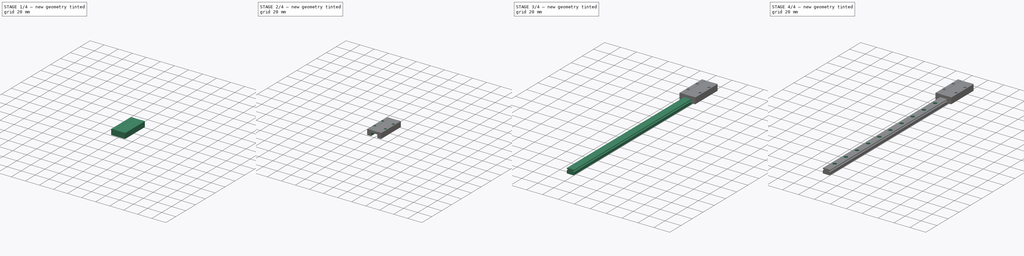
[diagram: build sequence overview — one tinted view per stage of 4, left to right]
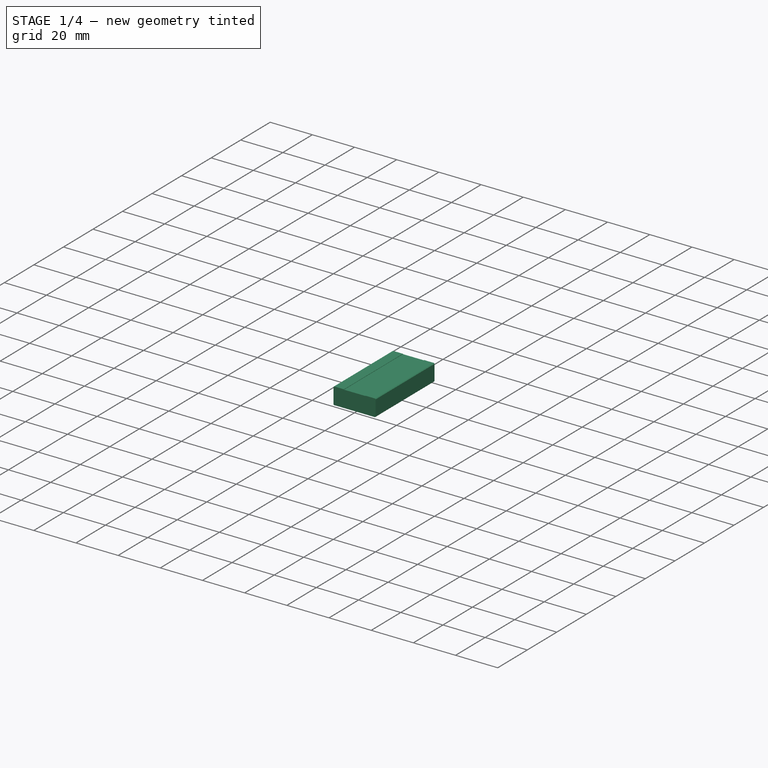
[diagram: stage 1 of 4 — iso view after this stage's code; geometry added in this stage tinted green]
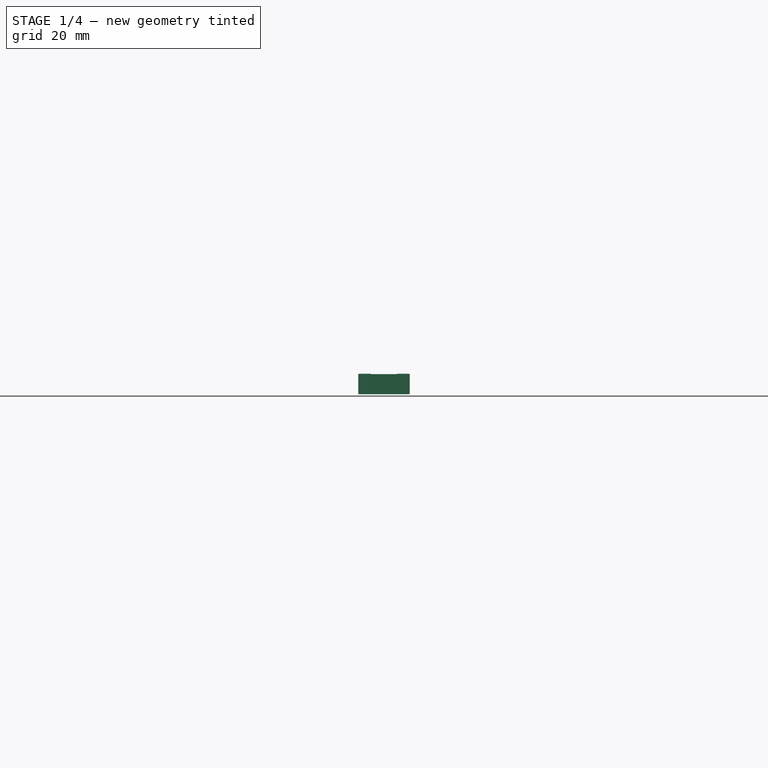
[diagram: stage 1 of 4 — front view after this stage's code; geometry added in this stage tinted green]
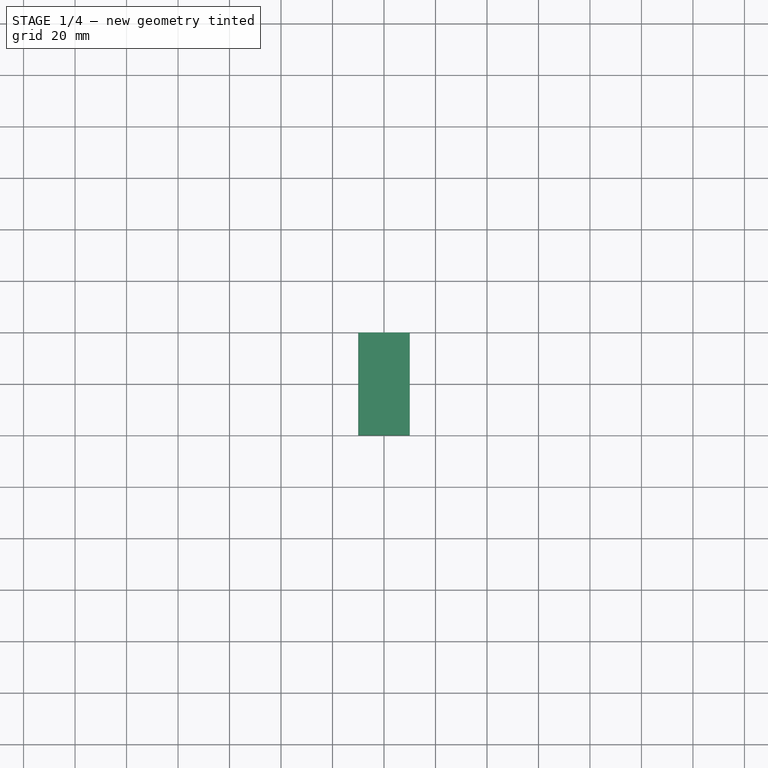
[diagram: stage 1 of 4 — top view after this stage's code; geometry added in this stage tinted green]
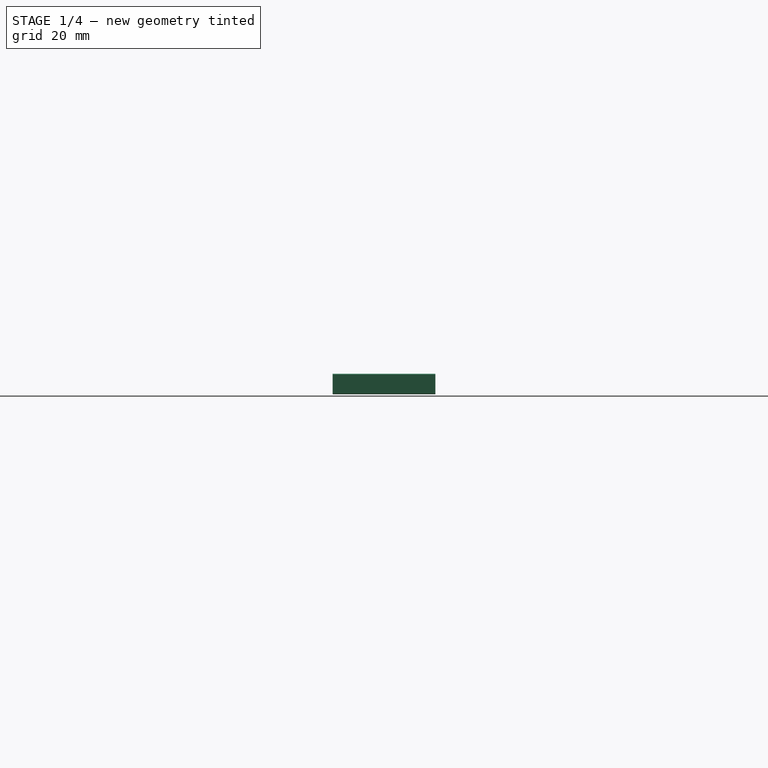
[diagram: stage 1 of 4 — right view after this stage's code; geometry added in this stage tinted green]
FCSTD DOCUMENT  (FreeCAD 0.18R16117 (Git))
Label: MGN9H
License: All rights reserved
LicenseURL: http://en.wikipedia.org/wiki/All_rights_reserved
objects: Sketcher::SketchObject×5, PartDesign::Chamfer×3, PartDesign::Pad×2, PartDesign::Hole×2, PartDesign::Body×2, PartDesign::LinearPattern×1, PartDesign::Pocket×1
note: 21 computed .brp shape members not serialized (recipe doc carries the construction recipe); baked Part::Feature solids carry a one-line shape summary decoded from their .brp

FEATURE [PartDesign::Body] Body  label="MGNR9"
  Group = -> [Sketch,Pad,Sketch001,Chamfer,Hole,LinearPattern]
  Origin = -> Origin
  Tip = -> LinearPattern
FEATURE [Sketcher::SketchObject] Sketch002
  MapMode = 5
  Placement = pos=(0,0,0) rot=(1,0,0;1.5708rad)
  Support = -> [XZ_Plane001]
  sketch-geometry (8):
    g0: LineSegment StartX=-10 StartY=2 StartZ=0 EndX=-10 EndY=10 EndZ=0
    g1: LineSegment StartX=10 StartY=2 StartZ=0 EndX=10 EndY=10 EndZ=0
    g2: LineSegment StartX=-5 StartY=9.85 StartZ=0 EndX=5 EndY=9.85 EndZ=0
    g3: LineSegment StartX=-10 StartY=10 StartZ=0 EndX=-5 EndY=10 EndZ=0
    g4: LineSegment StartX=10 StartY=10 StartZ=0 EndX=5 EndY=10 EndZ=0
    g5: LineSegment StartX=-5 StartY=10 StartZ=0 EndX=-5 EndY=9.85 EndZ=0
    g6: LineSegment StartX=5 StartY=10 StartZ=0 EndX=5 EndY=9.85 EndZ=0
    g7: LineSegment StartX=-10 StartY=2 StartZ=0 EndX=10 EndY=2 EndZ=0
  constraints (20):
    c: Vertical(g0)
    c: DistanceY(g-1,g0) = 2
    c: DistanceY(g-1,g0) = 10
    c: Symmetric(g0,g1,g-2)
    c: DistanceX(g0,g1) = 20
    c: Symmetric(g0,g1,g-2)
    c: Symmetric(g2,g2,g-2)
    c: DistanceX(g2,g2) = 10
    c: Coincident(g3,g0)
    c: Coincident(g4,g1)
    c: Symmetric(g3,g4,g-2)
    c: Coincident(g5,g3)
    c: Coincident(g5,g2)
    c: Coincident(g6,g4)
    c: Coincident(g6,g2)
    c: Vertical(g5)
    c: Horizontal(g3)
    c: DistanceY(g5,g5) = 0.15
    c: Coincident(g7,g0)
    c: Coincident(g7,g1)
FEATURE [PartDesign::Pad] Pad001
  Length = 39.9
  Length2 = 100
  Placement = pos=(0,0,0) rot=(1,0,0;1.5708rad)
  Profile = -> Sketch002
  Type = 0
FEATURE [PartDesign::Chamfer] Chamfer001
  Base = -> Pad001 [Edge17,Edge2,Edge20,Edge1]
  BaseFeature = -> Pad001
  Placement = pos=(0,0,0) rot=(1,0,0;1.5708rad)
  Size = 0.3
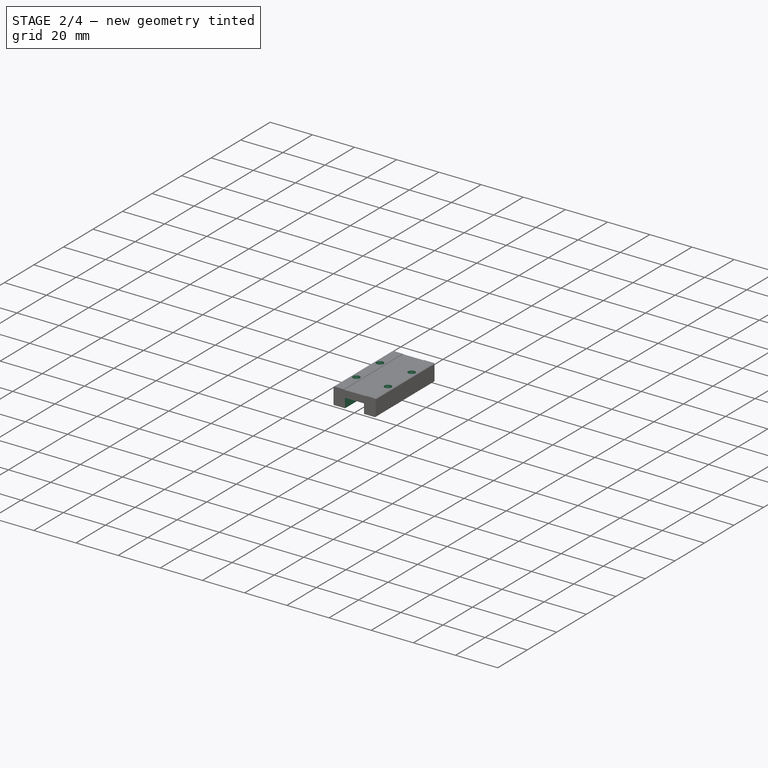
[diagram: stage 2 of 4 — iso view after this stage's code; geometry added in this stage tinted green]
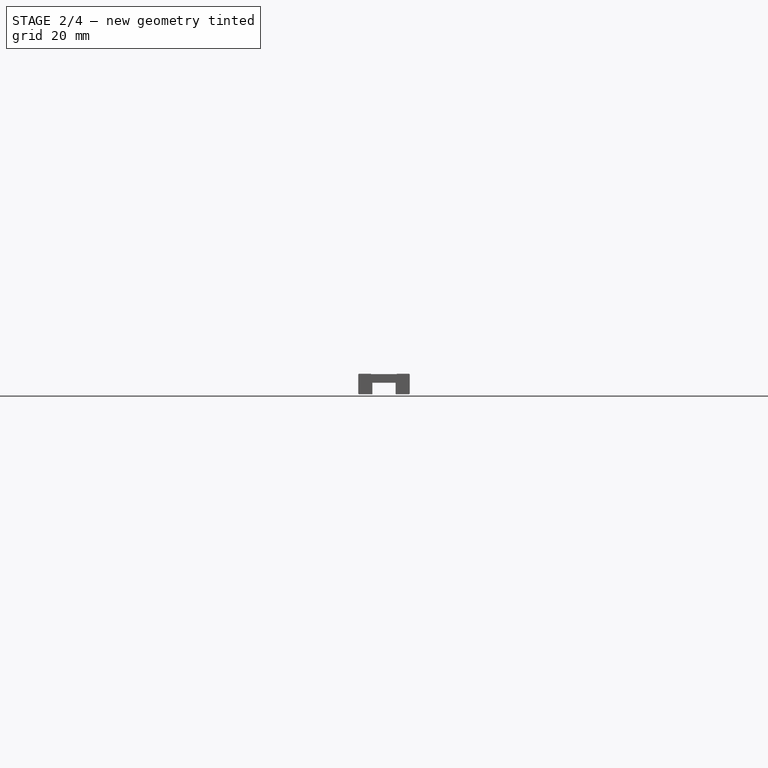
[diagram: stage 2 of 4 — front view after this stage's code; geometry added in this stage tinted green]
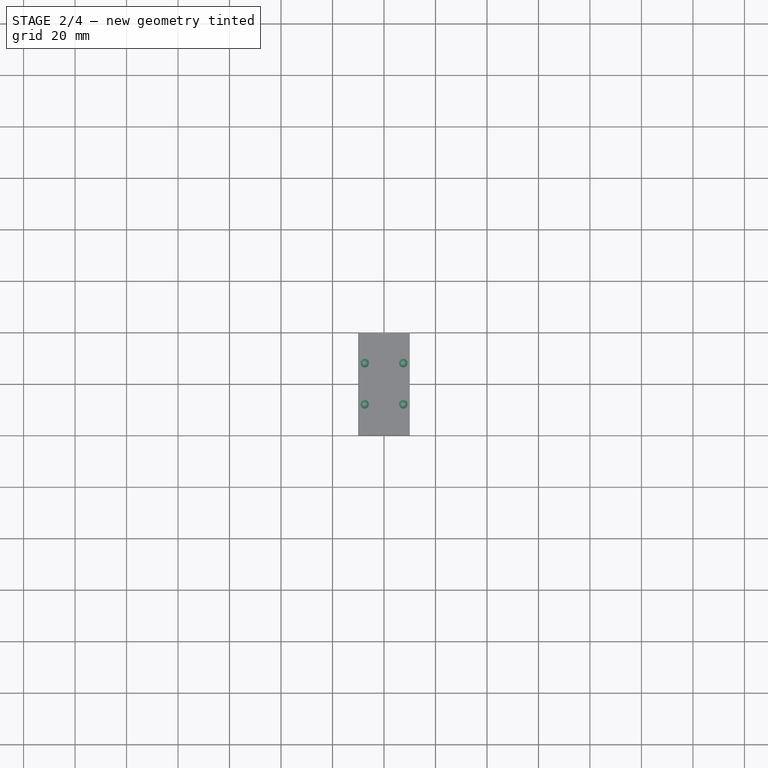
[diagram: stage 2 of 4 — top view after this stage's code; geometry added in this stage tinted green]
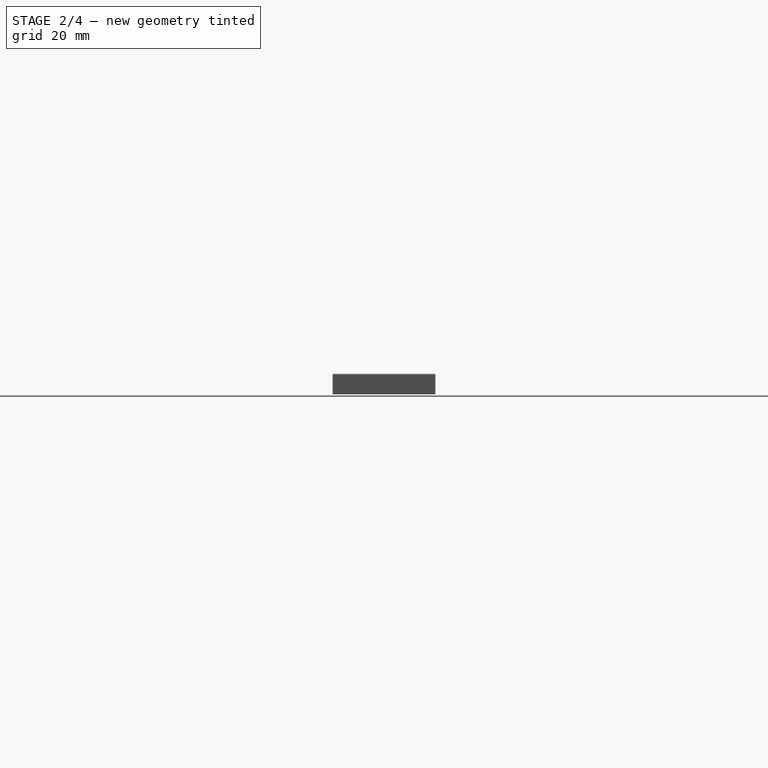
[diagram: stage 2 of 4 — right view after this stage's code; geometry added in this stage tinted green]
FEATURE [Sketcher::SketchObject] Sketch003
  AttachmentOffset = pos=(0,0,0.2) rot=(0,0,1;0rad)
  MapMode = 5
  Placement = pos=(0,4.4e-15,10.05) rot=(0,0,1;3.14159rad)
  Support = -> [Pad001]
  sketch-geometry (4):
    g0: Circle CenterX=-7.5 CenterY=11.95 CenterZ=0 NormalX=0 NormalY=0 NormalZ=1 AngleXU=0 Radius=1.5
    g1: Circle CenterX=7.5 CenterY=11.95 CenterZ=0 NormalX=0 NormalY=0 NormalZ=1 AngleXU=0 Radius=1.5
    g2: Circle CenterX=-7.5 CenterY=27.95 CenterZ=0 NormalX=0 NormalY=0 NormalZ=1 AngleXU=0 Radius=1.5
    g3: Circle CenterX=7.5 CenterY=27.95 CenterZ=0 NormalX=0 NormalY=0 NormalZ=1 AngleXU=0 Radius=1.5
  constraints (10):
    c: Diameter(g2) = 3
    c: Equal(g2,g3)
    c: Equal(g2,g1)
    c: Equal(g2,g0)
    c: Symmetric(g3,g2,g-2)
    c: Symmetric(g1,g0,g-2)
    c: Vertical(g0,g2)
    c: DistanceX(g2,g3) = 15
    c: DistanceY(g0,g2) = 16
    c: DistanceY(g-1,g0) = 11.95
FEATURE [PartDesign::Hole] Hole001
  BaseFeature = -> Chamfer001
  Depth = 8
  DepthType = 0
  Diameter = 3.3
  DrillPoint = 1
  DrillPointAngle = 118
  HoleCutCountersinkAngle = 90
  HoleCutDepth = 0
  HoleCutDiameter = 3
  HoleCutType = 0
  ModelActualThread = false
  Placement = pos=(0,0,0) rot=(1,0,0;1.5708rad)
  Profile = -> Sketch003
  Tapered = false
  TaperedAngle = 90
  ThreadAngle = 0
  ThreadClass = 0
  ThreadCutOffInner = 0
  ThreadCutOffOuter = 0
  ThreadDirection = 0
  ThreadFit = 0
  ThreadPitch = 0
  ThreadSize = 3
  ThreadType = 1
  Threaded = false
FEATURE [Sketcher::SketchObject] CopySketch
  Placement = pos=(0,0,0) rot=(1,0,0;1.5708rad)
  sketch-geometry (4):
    g0: LineSegment StartX=-4.5 StartY=6.5 StartZ=0 EndX=4.5 EndY=6.5 EndZ=0
    g1: LineSegment StartX=-4.5 StartY=0 StartZ=0 EndX=4.5 EndY=0 EndZ=0
    g2: LineSegment StartX=-4.5 StartY=6.5 StartZ=0 EndX=-4.5 EndY=0 EndZ=0
    g3: LineSegment StartX=4.5 StartY=6.5 StartZ=0 EndX=4.5 EndY=0 EndZ=0
  constraints (10):
    c: DistanceX(g1,g1) = 9
    c: Symmetric(g1,g1,g-2)
    c: PointOnObject(g1,g-1)
    c: DistanceY(g1,g0) = 6.5
    c: Symmetric(g0,g0,g-2)
    c: Coincident(g2,g0)
    c: Coincident(g2,g1)
    c: Vertical(g2)
    c: Coincident(g3,g0)
    c: Coincident(g3,g1)
FEATURE [PartDesign::Pocket] Pocket
  BaseFeature = -> Hole001
  Length = 5
  Length2 = 100
  Midplane = true
  Placement = pos=(0,0,0) rot=(1,0,0;1.5708rad)
  Profile = -> CopySketch
  Type = 1
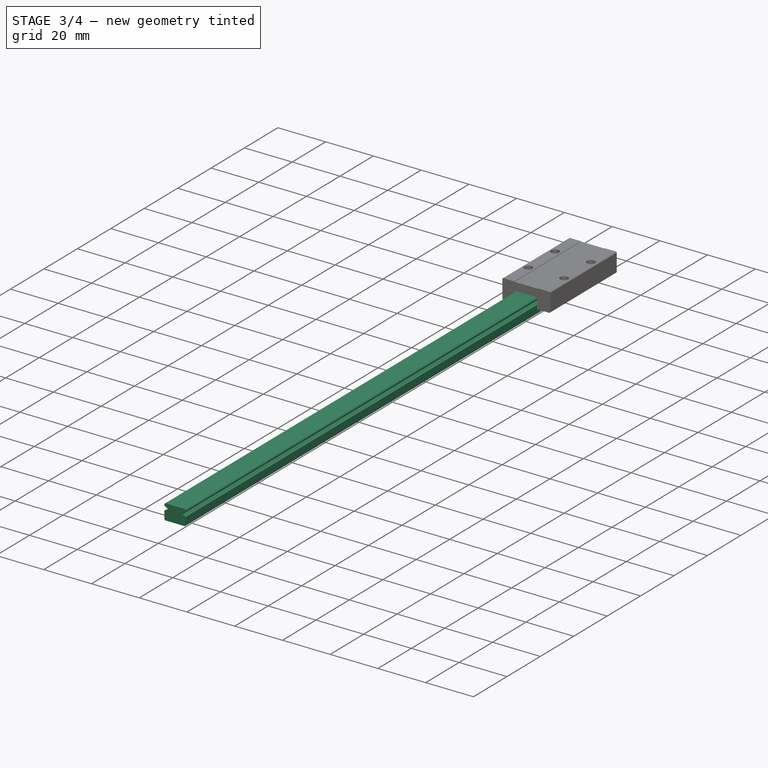
[diagram: stage 3 of 4 — iso view after this stage's code; geometry added in this stage tinted green]
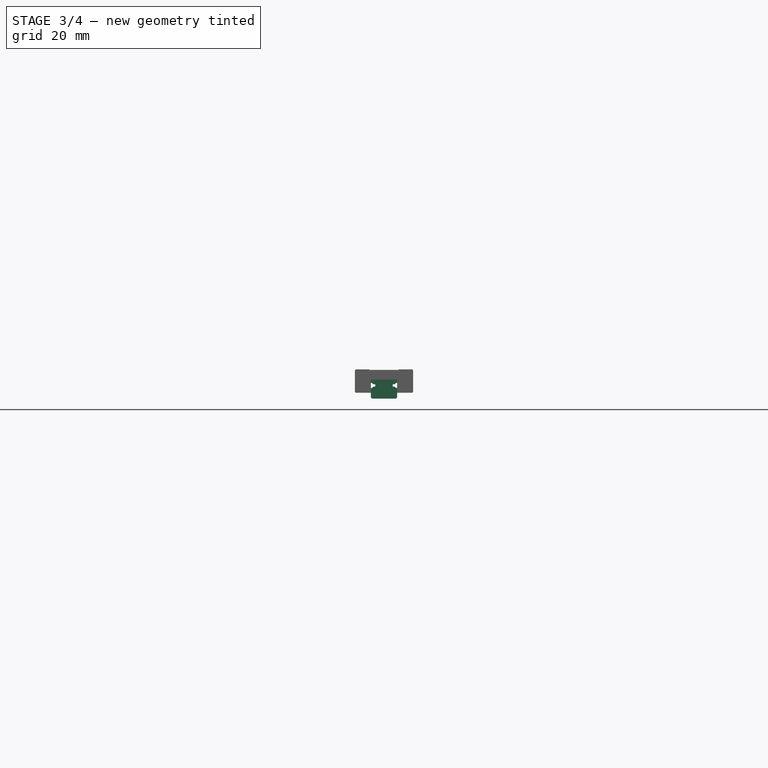
[diagram: stage 3 of 4 — front view after this stage's code; geometry added in this stage tinted green]
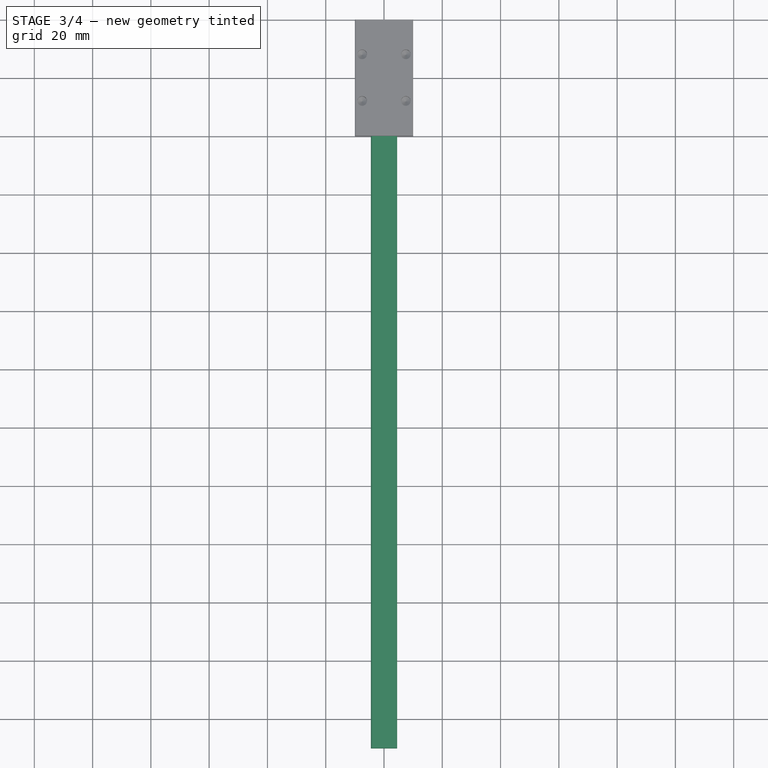
[diagram: stage 3 of 4 — top view after this stage's code; geometry added in this stage tinted green]
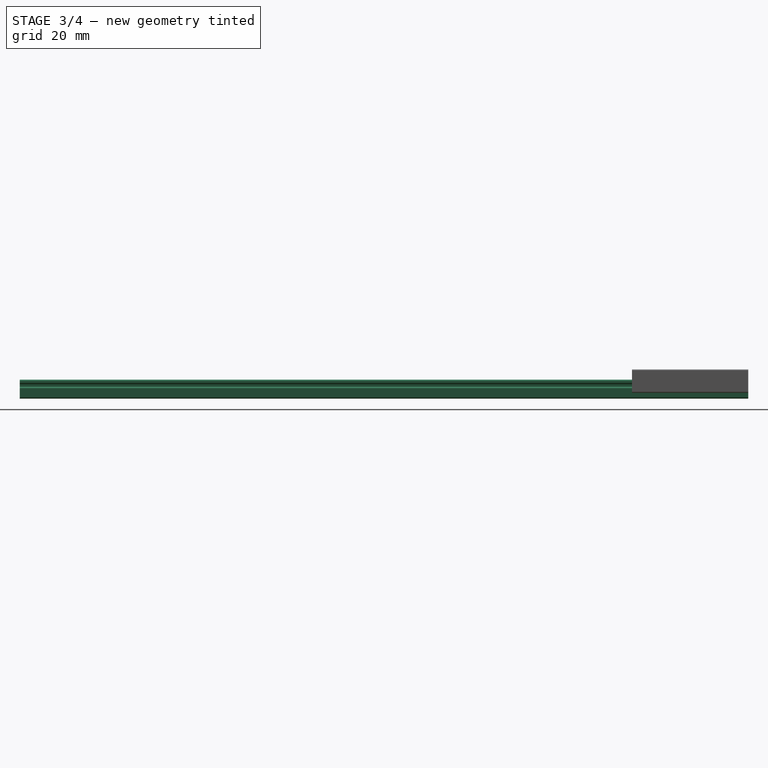
[diagram: stage 3 of 4 — right view after this stage's code; geometry added in this stage tinted green]
FEATURE [Sketcher::SketchObject] Sketch
  MapMode = 5
  Placement = pos=(0,0,0) rot=(1,0,0;1.5708rad)
  sketch-geometry (17):
    g0: LineSegment StartX=-4.5 StartY=6.5 StartZ=0 EndX=4.5 EndY=6.5 EndZ=0
    g1: LineSegment StartX=-4.5 StartY=0 StartZ=0 EndX=-4.5 EndY=3.6 EndZ=0
    g2: LineSegment StartX=-3.69377 StartY=4.1 StartZ=0 EndX=-3 EndY=4.1 EndZ=0
    g3: LineSegment StartX=-3 StartY=4.1 StartZ=0 EndX=-3 EndY=4.9 EndZ=0
    g4: LineSegment StartX=-3 StartY=4.9 StartZ=0 EndX=-3.69377 EndY=4.9 EndZ=0
    g5: LineSegment [constr] StartX=-4.5 StartY=4.5 StartZ=0 EndX=-3 EndY=4.5 EndZ=0
    g6: ArcOfCircle CenterX=-4.5 CenterY=4.5 CenterZ=0 NormalX=0 NormalY=0 NormalZ=1 AngleXU=0 Radius=0.9 StartAngle=4.71239 EndAngle=5.82263
    g7: ArcOfCircle CenterX=-4.5 CenterY=4.5 CenterZ=0 NormalX=0 NormalY=0 NormalZ=1 AngleXU=0 Radius=0.9 StartAngle=0.460554 EndAngle=1.5708
    g8: LineSegment StartX=-4.5 StartY=5.4 StartZ=0 EndX=-4.5 EndY=6.5 EndZ=0
    g9: LineSegment StartX=4.5 StartY=6.5 StartZ=0 EndX=4.5 EndY=5.4 EndZ=0
    g10: ArcOfCircle CenterX=4.5 CenterY=4.5 CenterZ=0 NormalX=0 NormalY=0 NormalZ=1 AngleXU=0 Radius=0.9 StartAngle=1.5708 EndAngle=2.68104
    g11: ArcOfCircle CenterX=4.5 CenterY=4.5 CenterZ=0 NormalX=0 NormalY=0 NormalZ=1 AngleXU=0 Radius=0.9 StartAngle=3.60215 EndAngle=4.71239
    g12: LineSegment StartX=3.69377 StartY=4.9 StartZ=0 EndX=3 EndY=4.9 EndZ=0
    g13: LineSegment StartX=3 StartY=4.9 StartZ=0 EndX=3 EndY=4.1 EndZ=0
    g14: LineSegment StartX=3 StartY=4.1 StartZ=0 EndX=3.69377 EndY=4.1 EndZ=0
    g15: LineSegment StartX=4.5 StartY=3.6 StartZ=0 EndX=4.5 EndY=0 EndZ=0
    g16: LineSegment StartX=-4.5 StartY=0 StartZ=0 EndX=4.5 EndY=0 EndZ=0
  constraints (44):
    c: DistanceX(g1,g15) = 9
    c: Symmetric(g1,g15,g-2)
    c: PointOnObject(g1,g-1)
    c: DistanceY(g1,g0) = 6.5
    c: Vertical(g1)
    c: Horizontal(g2)
    c: Coincident(g3,g2)
    c: Vertical(g3)
    c: Coincident(g4,g3)
    c: Horizontal(g4)
    c: PointOnObject(g5,g3)
    c: Horizontal(g5)
    c: Symmetric(g4,g2,g5)
    c: DistanceY(g2,g3) = 0.8
    c: Coincident(g6,g1)
    c: Coincident(g6,g2)
    c: Coincident(g7,g6)
    c: Coincident(g7,g4)
    c: Coincident(g8,g7)
    c: Vertical(g8)
    c: Coincident(g8,g0)
    c: Symmetric(g0,g0,g-2)
    c: Coincident(g5,g6)
    c: Symmetric(g7,g1,g6)
    c: Vertical(g7,g1)
    c: Radius(g7) = 0.9
    c: Coincident(g9,g0)
    c: Coincident(g10,g9)
    c: Symmetric(g9,g7,g-2)
    c: Symmetric(g10,g4,g-2)
    c: Coincident(g11,g10)
    c: Symmetric(g11,g2,g-2)
    c: Symmetric(g1,g11,g-2)
    c: Coincident(g12,g10)
    c: Coincident(g12,g13)
    c: Coincident(g13,g14)
    c: Coincident(g14,g11)
    c: Symmetric(g12,g3,g-2)
    c: Symmetric(g13,g2,g-2)
    c: Coincident(g15,g11)
    c: DistanceX(g7,g3) = 1.5
    c: DistanceY(g6,g0) = 2
    c: Coincident(g16,g1)
    c: Coincident(g16,g15)
FEATURE [PartDesign::Pad] Pad
  Length = 250
  Length2 = 100
  Placement = pos=(0,0,0) rot=(1,0,0;1.5708rad)
  Profile = -> Sketch
  Type = 0
FEATURE [Sketcher::SketchObject] Sketch001
  MapMode = 5
  Placement = pos=(0,1.4e-15,6.5) rot=(0,0,1;3.14159rad)
  Support = -> [Pad]
  sketch-geometry (1):
    g0: Circle CenterX=0 CenterY=15 CenterZ=0 NormalX=0 NormalY=0 NormalZ=1 AngleXU=0 Radius=6.47834
  constraints (2):
    c: PointOnObject(g0,g-2)
    c: DistanceY(g-1,g0) = 15
FEATURE [PartDesign::Chamfer] Chamfer
  Base = -> Pad [Edge23,Edge20,Edge44,Edge1]
  BaseFeature = -> Pad
  Placement = pos=(0,0,0) rot=(1,0,0;1.5708rad)
  Size = 0.4
FEATURE [PartDesign::Chamfer] Chamfer002
  Base = -> Pocket [Edge39,Edge38]
  BaseFeature = -> Pocket
  Placement = pos=(0,0,0) rot=(1,0,0;1.5708rad)
  Size = 0.4
FEATURE [PartDesign::Body] Body001  label="MGN9H"
  Group = -> [Sketch002,Pad001,Chamfer001,Sketch003,Hole001,CopySketch,Pocket,Chamfer002]
  Origin = -> Origin001
  Tip = -> Chamfer002
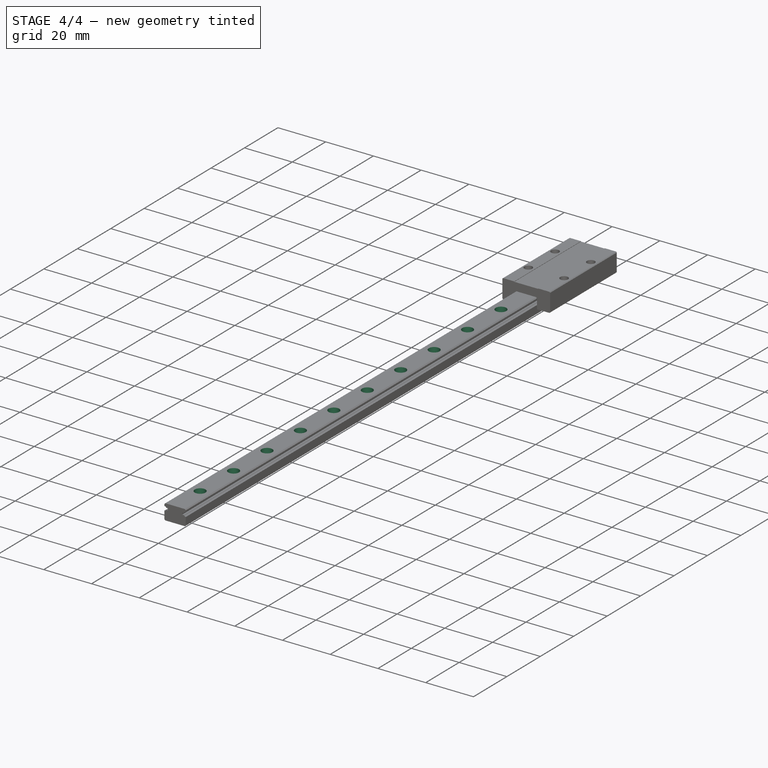
[diagram: stage 4 of 4 — iso view after this stage's code; geometry added in this stage tinted green]
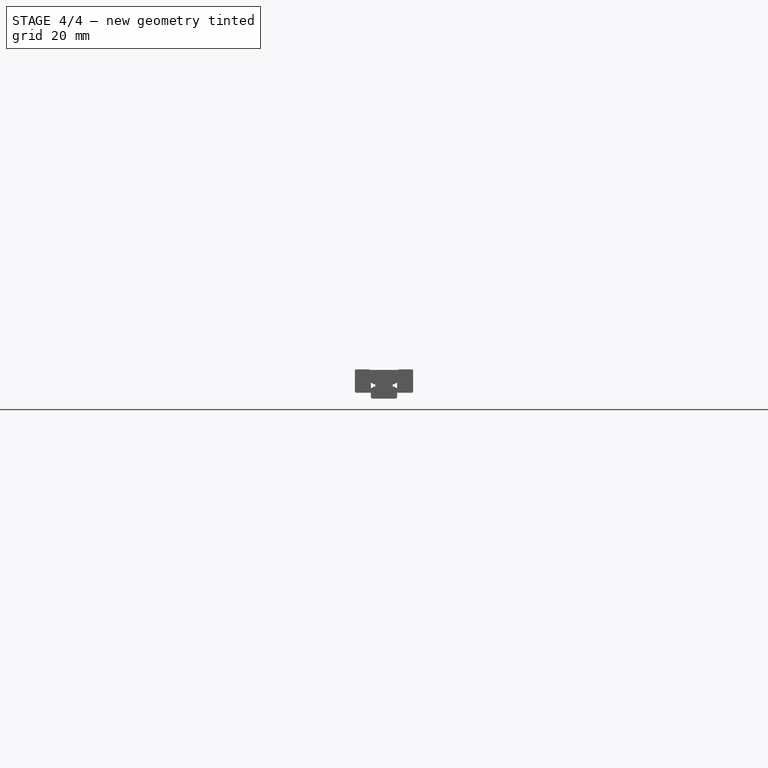
[diagram: stage 4 of 4 — front view after this stage's code; geometry added in this stage tinted green]
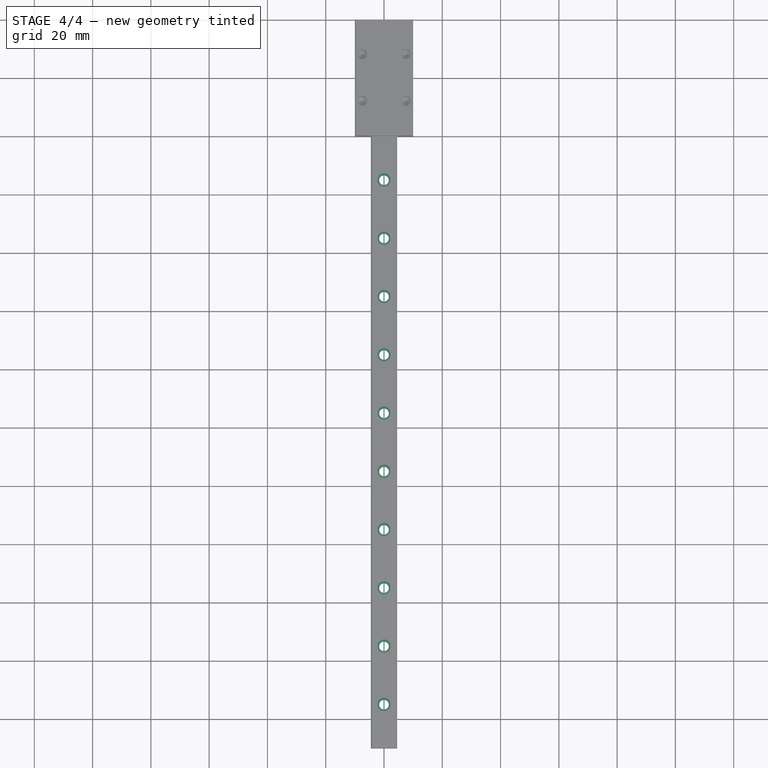
[diagram: stage 4 of 4 — top view after this stage's code; geometry added in this stage tinted green]
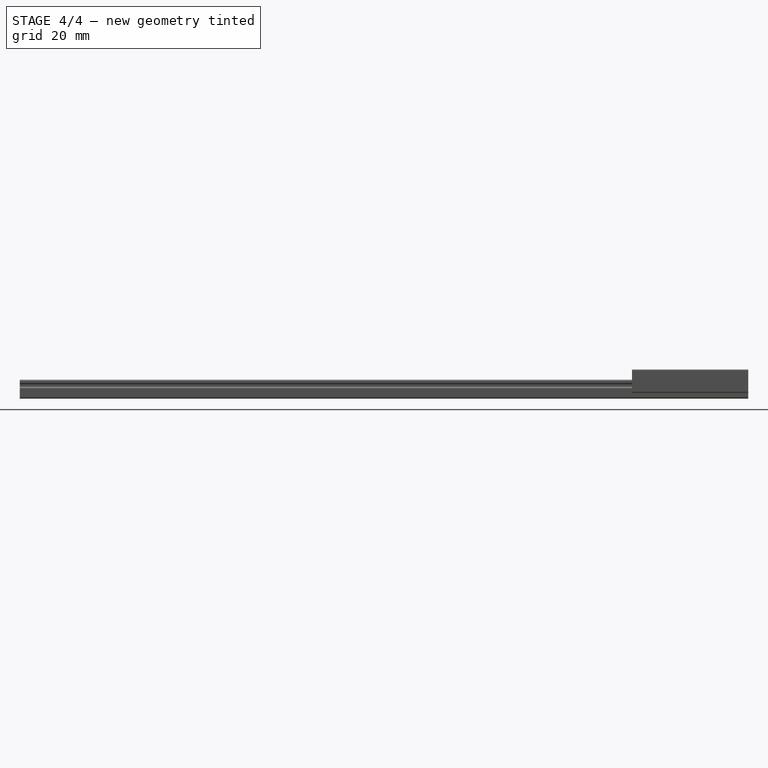
[diagram: stage 4 of 4 — right view after this stage's code; geometry added in this stage tinted green]
FEATURE [PartDesign::Hole] Hole
  BaseFeature = -> Chamfer
  Depth = 25
  DepthType = 0
  Diameter = 1.75
  DrillPoint = 1
  DrillPointAngle = 118
  HoleCutCountersinkAngle = 90
  HoleCutDepth = 0
  HoleCutDiameter = 1.6
  HoleCutType = 0
  ModelActualThread = false
  Placement = pos=(0,0,0) rot=(1,0,0;1.5708rad)
  Profile = -> Sketch001
  Tapered = false
  TaperedAngle = 90
  ThreadAngle = 0
  ThreadClass = 0
  ThreadCutOffInner = 0
  ThreadCutOffOuter = 0
  ThreadDirection = 0
  ThreadFit = 0
  ThreadPitch = 0
  ThreadSize = 0
  ThreadType = 1
  Threaded = false
FEATURE [PartDesign::LinearPattern] LinearPattern
  BaseFeature = -> Hole
  Direction = -> Sketch001 [V_Axis]
  Length = 220
  Occurrences = 12
  Originals = -> [Hole]
  Placement = pos=(0,0,0) rot=(1,0,0;1.5708rad)
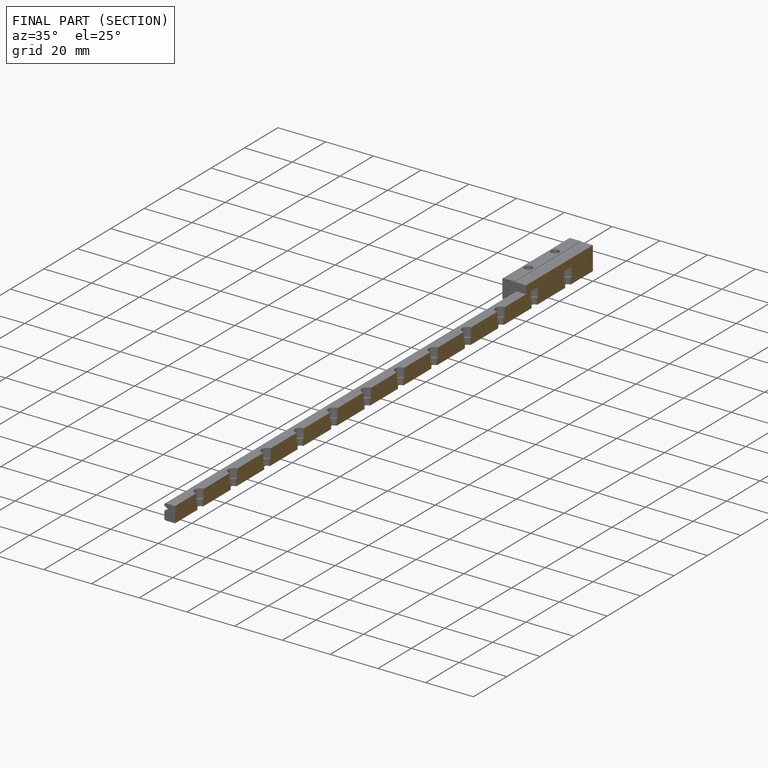
[diagram: finished part — half-section view (interior)]
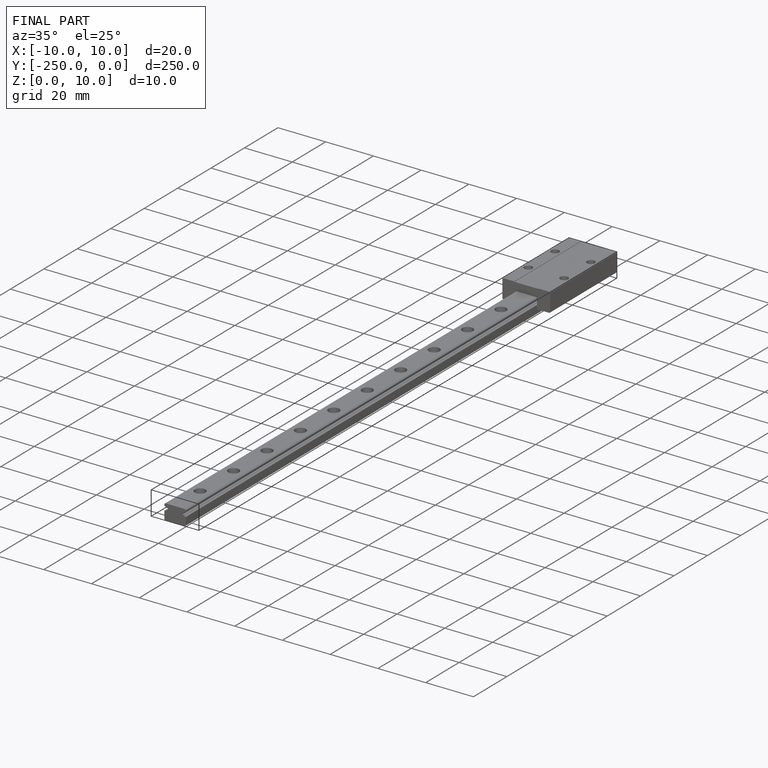
[diagram: finished part — iso view with bounding-box wireframe]
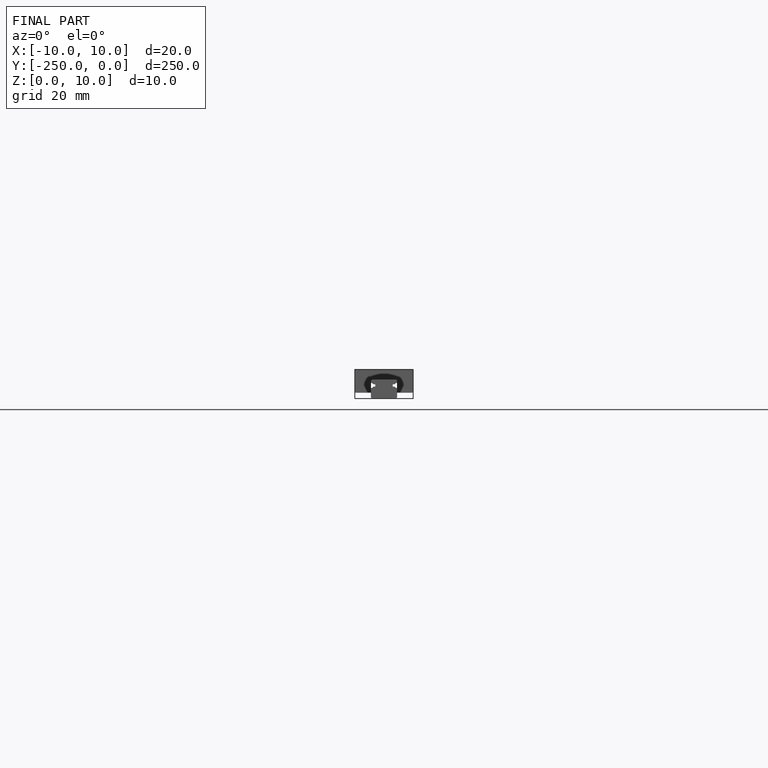
[diagram: finished part — front view with bounding-box wireframe]
